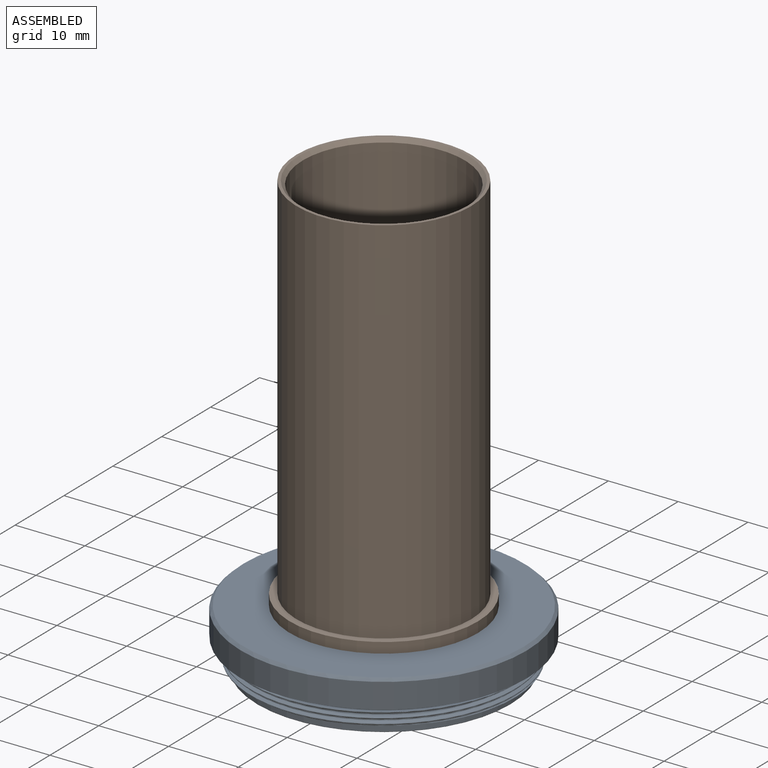
[diagram: assembled view]
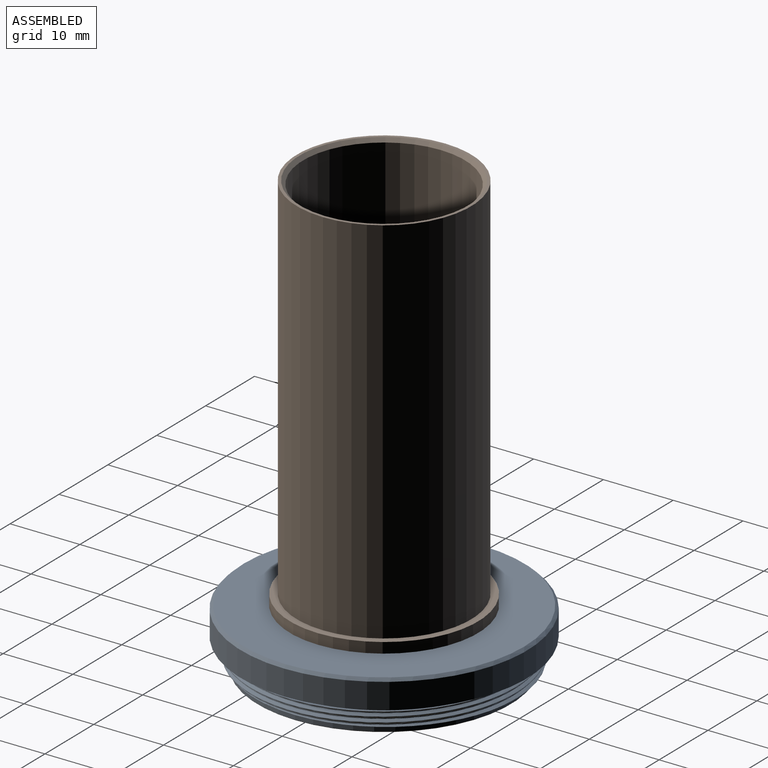
[diagram: assembled view, second angle]
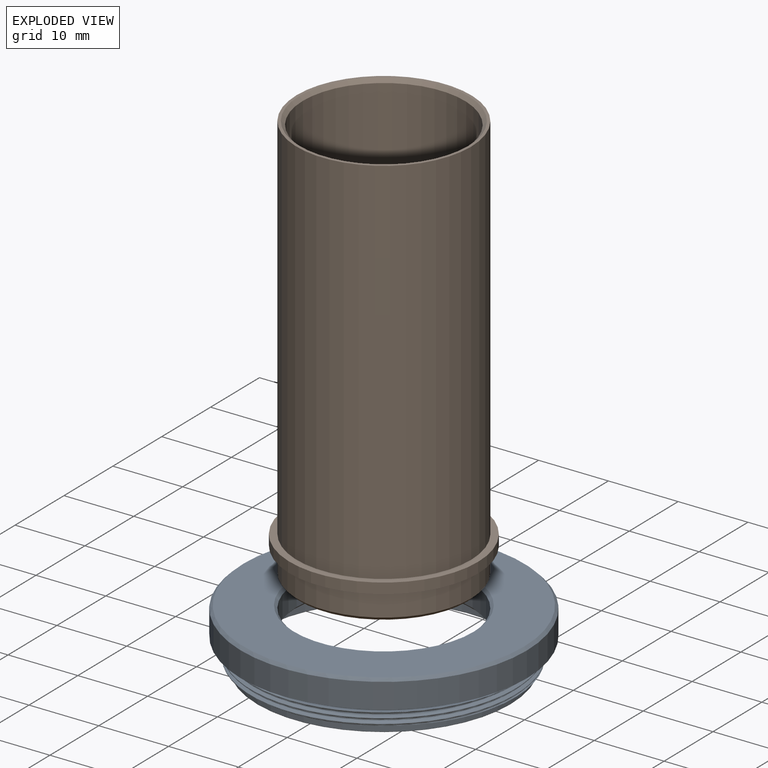
[diagram: exploded view]
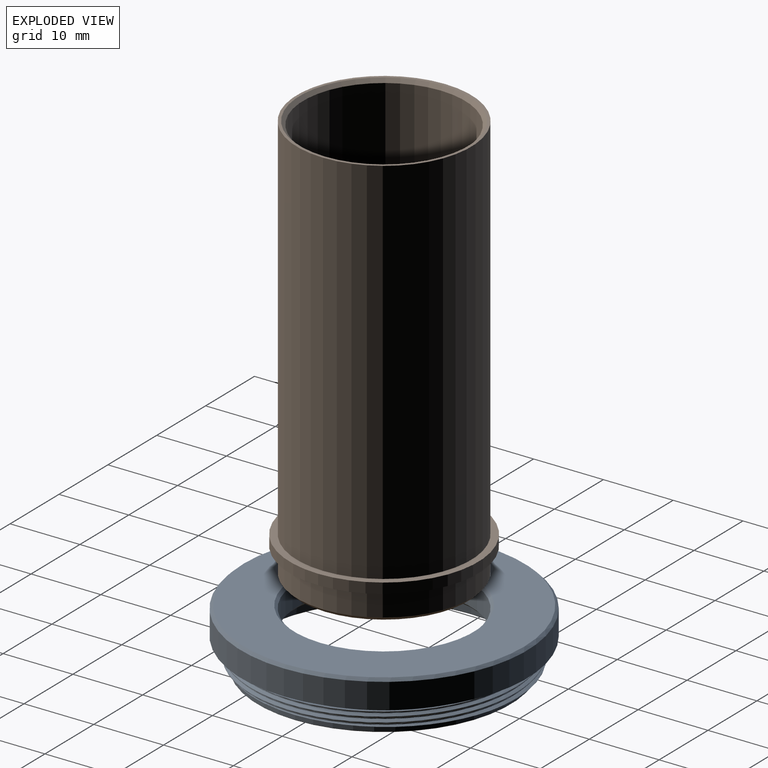
[diagram: exploded view, second angle]
ASSEMBLY  parts=2 mates=2
PART A: 22 faces, bbox 41.3x44.2x8.3 mm
  f0: plane 37.86x37.82mm, normal (0,0,1), area 31.1mm2, adj f1,f6,f16,f17,f18
  f1: cylinder r=19mm len=38mm, axis (0,0,1), area 29.6mm2, adj f0,f7,f17,f18
  f2: cylinder r=12.5mm len=25mm, axis (0,0,1), area 251.3mm2, adj f20,f21
  f3: plane 40.2x40.2mm, normal (0,0,1), area 746.4mm2, adj f19,f20
  f4: cylinder r=20.5mm len=41mm, axis (0,0,1), area 463.7mm2, adj f5,f19
  f5: plane 41x41mm, normal (0,0,-1), area 245mm2, adj f4,f6
  f6: cylinder r=18.5mm len=37mm, axis (0,0,1), area 116.2mm2, adj f0,f5
  f7: plane 37.86x37.82mm, normal (0,0,-1), area 65.7mm2, adj f1,f8,f16,f17,f18
  f8: cylinder r=18.2mm len=36.4mm, axis (0,0,1), area 102.9mm2, adj f7,f14
  f9: plane 36.2x36.2mm, normal (0,0,-1), area 28.2mm2, adj f14,f15
  f10: cylinder r=17.75mm len=35.5mm, axis (0,0,1), area 741.7mm2, adj f11,f15
  f11: plane 35.5x35.5mm, normal (0,0,-1), area 417.2mm2, adj f10,f12
  f12: cylinder r=13.5mm len=27mm, axis (0,0,1), area 233.3mm2, adj f11,f13
  f13: plane 27x27mm, normal (0,0,-1), area 49.8mm2, adj f12,f21
  f14: torus R=18.1mm, axis (0,0,-1), area 17.9mm2, adj f8,f9
  f15: torus R=17.85mm, axis (0,0,-1), area 17.6mm2, adj f9,f10
  f16: bspline ~42.94x37.19mm, area 65.3mm2, adj f0,f7,f17,f18
  f17: bspline ~43.88x38mm, area 147.7mm2, adj f0,f1,f7,f16
  f18: bspline ~43.88x38mm, area 147.6mm2, adj f0,f1,f7,f16
  f19: cone r=20.1mm half-angle=45deg, axis (0,0,-1), area 72.2mm2, adj f3,f4
  f20: cone r=12.5mm half-angle=45deg, axis (0,0,1), area 45.1mm2, adj f2,f3
  f21: cone r=12.9mm half-angle=45deg, axis (0,0,-1), area 45.1mm2, adj f2,f13
PART B: 12 faces, bbox 27x27x59 mm
  f0: plane 27x27mm, normal (0,0,-1), area 81.7mm2, adj f1,f9
  f1: cylinder r=12.5mm len=25mm, axis (0,0,1), area 274.9mm2, adj f0,f10
  f2: plane 24x24mm, normal (0,0,-1), area 18.7mm2, adj f3,f10
  f3: cylinder r=11.75mm len=37mm, axis (0,0,1), area 2731.6mm2, adj f2,f4
  f4: plane 23.5x23.5mm, normal (0,0,-1), area 11mm2, adj f3,f5
  f5: cylinder r=11.6mm len=23.2mm, axis (0,0,1), area 1567mm2, adj f4,f11
  f6: plane 25x25mm, normal (0,0,1), area 30.9mm2, adj f7,f11
  f7: cylinder r=12.5mm len=53.5mm, axis (0,0,1), area 4201.9mm2, adj f6,f8
  f8: plane 27x27mm, normal (0,0,1), area 81.7mm2, adj f7,f9
  f9: cylinder r=13.5mm len=27mm, axis (0,0,1), area 127.2mm2, adj f0,f8
  f10: cone r=12.5mm half-angle=45deg, axis (0,0,1), area 54.4mm2, adj f1,f2
  f11: cone r=11.6mm half-angle=45deg, axis (0,0,1), area 52.6mm2, adj f5,f6
PLACE A t=(49.62,20.33,17.6)mm
PLACE B t=(49.62,20.33,17.6)mm
MATE planar B.f1 <-> A.f1  axis (0,0,-1) through (49.62,20.33,17.6)mm
MATE cylindrical B.f1 <-> A.f1  axis (0,0,1) through (49.62,20.33,15.85)mm
